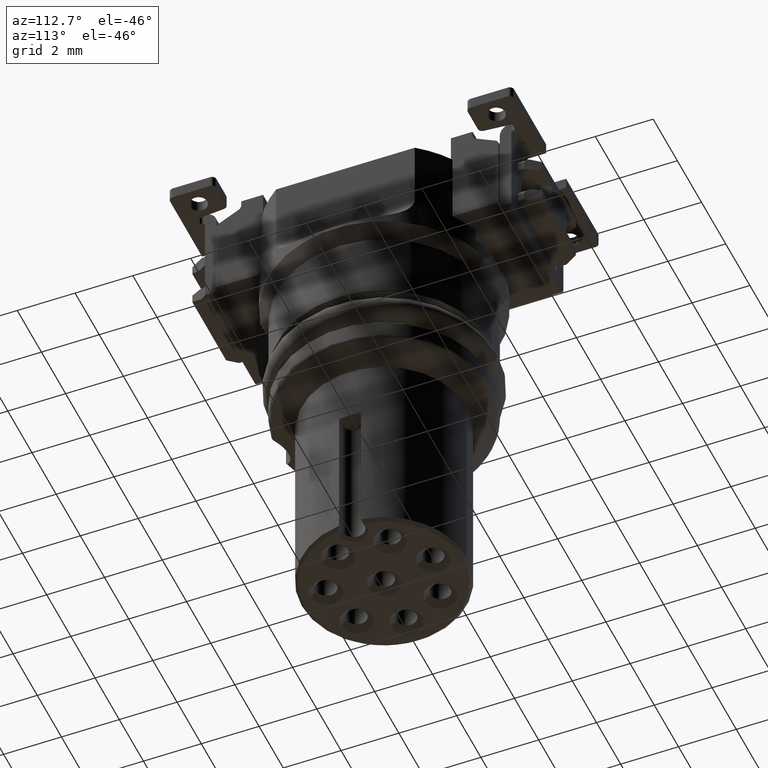
[diagram: clean part render]
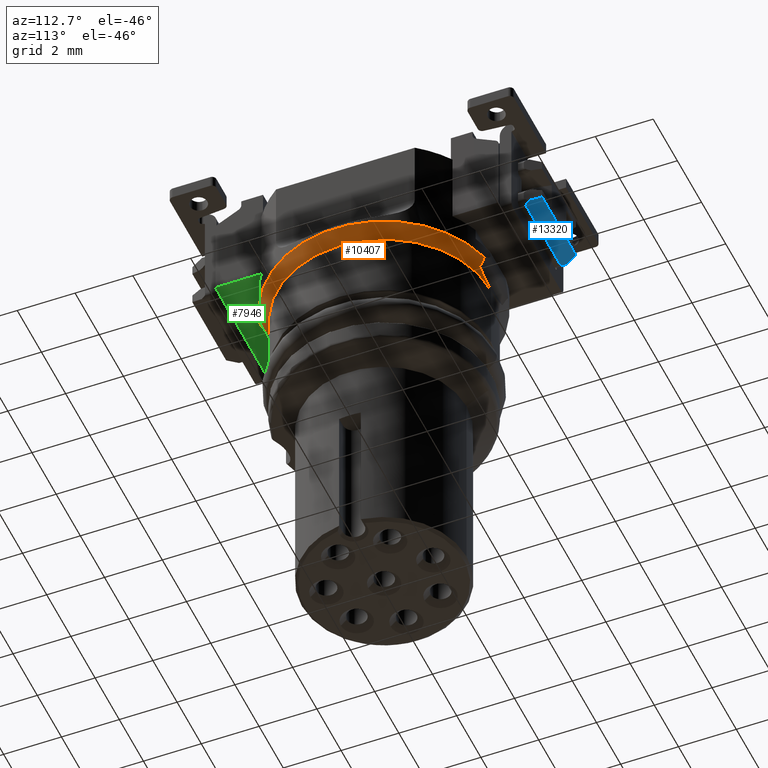
[diagram: same view with three faces highlighted in distinct colors, each labeled with its STEP entity id]
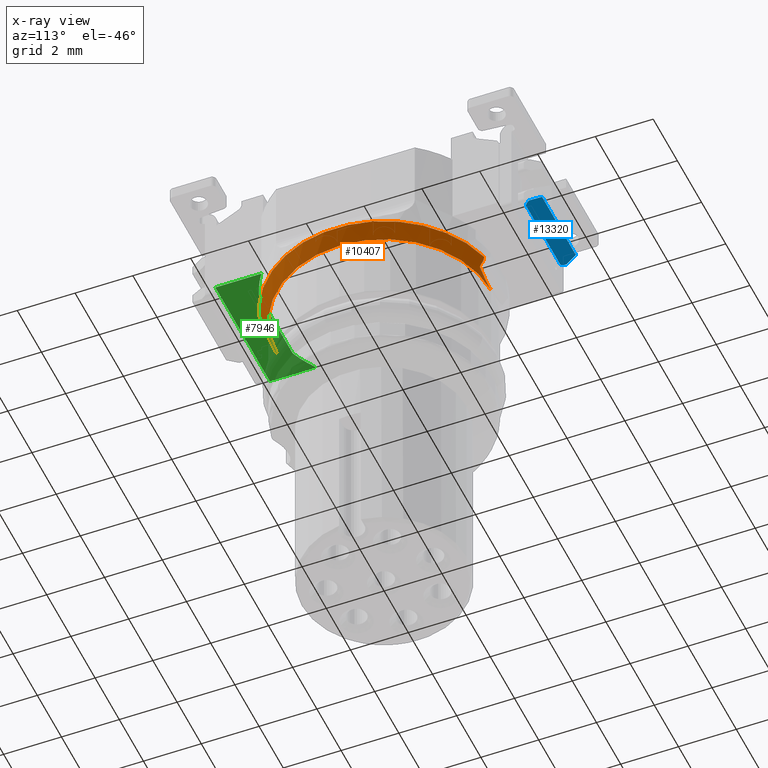
[diagram: x-ray of the same camera — body ghosted, the three highlighted faces saturated]
A machine part, auxiliary view with three faces highlighted in distinct colors.
The next image is the same camera in x-ray (body ghosted, the three faces saturated) — at least one of them is partly hidden behind the body in this view.
Their STEP definitions:

[orange] entity #10407 — the highlighted conical surface has half-angle 30 deg.
#134=CARTESIAN_POINT('',(9.943720652625E-1,3.874432112688E0,-4.5E0));
#147=CARTESIAN_POINT('',(0.E0,0.E0,-4.5E0));
#148=DIRECTION('',(0.E0,0.E0,1.E0));
#149=DIRECTION('',(2.485930163156E-1,-9.686080281719E-1,0.E0));
#150=AXIS2_PLACEMENT_3D('',#147,#148,#149);
#163=CARTESIAN_POINT('',(9.943720652625E-1,-3.874432112688E0,-4.5E0));
#2607=CARTESIAN_POINT('',(9.315641318417E-1,3.7E0,-4.819615242271E0));
#2608=CARTESIAN_POINT('',(8.493670666593E-1,3.7E0,-4.854375392762E0));
#2609=CARTESIAN_POINT('',(6.874080008922E-1,3.700000000001E0,
-4.914161153097E0));
#2610=CARTESIAN_POINT('',(4.538442470192E-1,3.699999999996E0,
-4.975620152893E0));
#2611=CARTESIAN_POINT('',(2.258823231950E-1,3.700000000014E0,
-5.011683513965E0));
#2612=CARTESIAN_POINT('',(7.496878670291E-2,3.699999999971E0,
-5.019615242373E0));
#2613=CARTESIAN_POINT('',(1.068376835849E-8,3.699999999971E0,
-5.019615242373E0));
#2615=CARTESIAN_POINT('',(-1.068378148800E-8,-3.699999999971E0,
-5.019615242373E0));
#2616=CARTESIAN_POINT('',(7.504329832605E-2,-3.699999999971E0,
-5.019615244249E0));
#2617=CARTESIAN_POINT('',(2.260781828589E-1,-3.700000000014E0,
-5.011668687322E0));
#2618=CARTESIAN_POINT('',(4.541779621527E-1,-3.699999999996E0,
-4.975552484746E0));
#2619=CARTESIAN_POINT('',(6.877179817763E-1,-3.700000000001E0,
-4.914057580533E0));
#2620=CARTESIAN_POINT('',(8.494914143789E-1,-3.7E0,-4.854322807607E0));
#2621=CARTESIAN_POINT('',(9.315641318417E-1,-3.7E0,-4.819615242271E0));
#2623=CARTESIAN_POINT('',(9.458364821559E-1,-3.816025403784E0,
-4.618653347947E0));
#2624=CARTESIAN_POINT('',(9.442525268213E-1,-3.803050933852E0,
-4.641125789072E0));
#2625=CARTESIAN_POINT('',(9.410833939143E-1,-3.777157165658E0,
-4.685975111183E0));
#2626=CARTESIAN_POINT('',(9.363259719431E-1,-3.738482027975E0,
-4.752962414639E0));
#2627=CARTESIAN_POINT('',(9.331518381993E-1,-3.712808951286E0,
-4.797429487852E0));
#2628=CARTESIAN_POINT('',(9.315641318417E-1,-3.7E0,-4.819615242271E0));
#2630=CARTESIAN_POINT('',(9.943720652625E-1,-3.874432112688E0,-4.5E0));
#2631=CARTESIAN_POINT('',(9.841727652113E-1,-3.868548814188E0,
-4.514261853440E0));
#2632=CARTESIAN_POINT('',(9.670263563274E-1,-3.856304178709E0,
-4.542098553465E0));
#2633=CARTESIAN_POINT('',(9.509026141288E-1,-3.836273175767E0,
-4.582503802808E0));
#2634=CARTESIAN_POINT('',(9.466628519931E-1,-3.822794351350E0,
-4.606929186851E0));
#2635=CARTESIAN_POINT('',(9.458364821559E-1,-3.816025403784E0,
-4.618653347947E0));
#2637=CARTESIAN_POINT('',(9.458364821559E-1,3.816025403784E0,
-4.618653347947E0));
#2638=CARTESIAN_POINT('',(9.466618478052E-1,3.822786125861E0,
-4.606943433814E0));
#2639=CARTESIAN_POINT('',(9.508935599502E-1,3.836255484421E0,
-4.582537309674E0));
#2640=CARTESIAN_POINT('',(9.670116381037E-1,3.856292283016E0,
-4.542124732746E0));
#2641=CARTESIAN_POINT('',(9.841651531226E-1,3.868544423280E0,
-4.514272497552E0));
#2642=CARTESIAN_POINT('',(9.943720652625E-1,3.874432112688E0,-4.5E0));
#2644=CARTESIAN_POINT('',(9.315641318417E-1,3.7E0,-4.819615242271E0));
#2645=CARTESIAN_POINT('',(9.331518382033E-1,3.712808951318E0,
-4.797429487796E0));
#2646=CARTESIAN_POINT('',(9.363259719524E-1,3.738482028051E0,
-4.752962414509E0));
#2647=CARTESIAN_POINT('',(9.410833939235E-1,3.777157165733E0,
-4.685975111053E0));
#2648=CARTESIAN_POINT('',(9.442525268252E-1,3.803050933884E0,
-4.641125789016E0));
#2649=CARTESIAN_POINT('',(9.458364821559E-1,3.816025403784E0,
-4.618653347947E0));
#2725=CARTESIAN_POINT('',(0.E0,0.E0,-5.019615242271E0));
#2726=DIRECTION('',(0.E0,0.E0,1.E0));
#2727=DIRECTION('',(0.E0,-1.E0,0.E0));
#2728=AXIS2_PLACEMENT_3D('',#2725,#2726,#2727);
#5933=CARTESIAN_POINT('',(-1.068378148800E-8,-3.699999999971E0,
-5.019615242373E0));
#5934=VERTEX_POINT('',#5933);
#5935=CARTESIAN_POINT('',(1.068376835849E-8,3.699999999971E0,
-5.019615242373E0));
#5936=VERTEX_POINT('',#5935);
#5937=VERTEX_POINT('',#134);
#5953=VERTEX_POINT('',#163);
#5975=VERTEX_POINT('',#2607);
#5976=VERTEX_POINT('',#2649);
#5977=VERTEX_POINT('',#2635);
#5978=VERTEX_POINT('',#2628);
#10387=CARTESIAN_POINT('',(0.E0,0.E0,-4.759807621263E0));
#10388=DIRECTION('',(0.E0,0.E0,1.E0));
#10389=DIRECTION('',(0.E0,-1.E0,0.E0));
#10390=AXIS2_PLACEMENT_3D('',#10387,#10388,#10389);
#10391=CONICAL_SURFACE('',#10390,3.849999999926E0,3.E1);
#10393=ORIENTED_EDGE('',*,*,#10392,.T.);
#10395=ORIENTED_EDGE('',*,*,#10394,.F.);
#10397=ORIENTED_EDGE('',*,*,#10396,.T.);
#10399=ORIENTED_EDGE('',*,*,#10398,.F.);
#10400=ORIENTED_EDGE('',*,*,#10376,.F.);
#10401=ORIENTED_EDGE('',*,*,#7174,.T.);
#10402=ORIENTED_EDGE('',*,*,#7225,.F.);
#10404=ORIENTED_EDGE('',*,*,#10403,.F.);
#10405=EDGE_LOOP('',(#10393,#10395,#10397,#10399,#10400,#10401,#10402,#10404));
#10406=FACE_OUTER_BOUND('',#10405,.F.);
#151=CIRCLE('',#150,4.E0);
#2614=B_SPLINE_CURVE_WITH_KNOTS('',3,(#2607,#2608,#2609,#2610,#2611,#2612,
#2613),.UNSPECIFIED.,.F.,.F.,(4,1,1,1,4),(0.E0,2.5E-1,5.E-1,7.5E-1,1.E0),
.UNSPECIFIED.);
#2622=B_SPLINE_CURVE_WITH_KNOTS('',3,(#2615,#2616,#2617,#2618,#2619,#2620,
#2621),.UNSPECIFIED.,.F.,.F.,(4,1,1,1,4),(0.E0,2.5E-1,5.E-1,7.5E-1,1.E0),
.UNSPECIFIED.);
#2629=B_SPLINE_CURVE_WITH_KNOTS('',3,(#2623,#2624,#2625,#2626,#2627,#2628),
.UNSPECIFIED.,.F.,.F.,(4,1,1,4),(0.E0,3.333333333333E-1,6.666666666667E-1,1.E0),
.UNSPECIFIED.);
#2636=B_SPLINE_CURVE_WITH_KNOTS('',3,(#2630,#2631,#2632,#2633,#2634,#2635),
.UNSPECIFIED.,.F.,.F.,(4,1,1,4),(0.E0,3.333333333333E-1,6.666666666667E-1,1.E0),
.UNSPECIFIED.);
#2643=B_SPLINE_CURVE_WITH_KNOTS('',3,(#2637,#2638,#2639,#2640,#2641,#2642),
.UNSPECIFIED.,.F.,.F.,(4,1,1,4),(0.E0,3.333333333333E-1,6.666666666667E-1,1.E0),
.UNSPECIFIED.);
#2650=B_SPLINE_CURVE_WITH_KNOTS('',3,(#2644,#2645,#2646,#2647,#2648,#2649),
.UNSPECIFIED.,.F.,.F.,(4,1,1,4),(0.E0,3.333333333333E-1,6.666666666667E-1,1.E0),
.UNSPECIFIED.);
#2729=CIRCLE('',#2728,3.7E0);
#7174=EDGE_CURVE('',#5953,#5937,#151,.T.);
#7225=EDGE_CURVE('',#5976,#5937,#2643,.T.);
#10376=EDGE_CURVE('',#5953,#5977,#2636,.T.);
#10392=EDGE_CURVE('',#5975,#5936,#2614,.T.);
#10394=EDGE_CURVE('',#5934,#5936,#2729,.T.);
#10396=EDGE_CURVE('',#5934,#5978,#2622,.T.);
#10398=EDGE_CURVE('',#5977,#5978,#2629,.T.);
#10403=EDGE_CURVE('',#5975,#5976,#2650,.T.);
#10407=ADVANCED_FACE('',(#10406),#10391,.T.);

[blue] entity #13320 — the highlighted planar face has unit normal (0, 0.342, -0.9397).
#4708=CARTESIAN_POINT('',(-1.4E0,5.500504516109E0,-3.2E0));
#4709=CARTESIAN_POINT('',(-1.421987980495E0,5.500504516109E0,-3.2E0));
#4710=CARTESIAN_POINT('',(-1.453592220628E0,5.516767493755E0,
-3.194080760216E0));
#4711=CARTESIAN_POINT('',(-1.501950523682E0,5.568814427804E0,
-3.175137225438E0));
#4712=CARTESIAN_POINT('',(-1.527190050242E0,5.622347825239E0,
-3.155652662232E0));
#4713=CARTESIAN_POINT('',(-1.541421356237E0,5.661448017109E0,
-3.141421356237E0));
#4715=CARTESIAN_POINT('',(1.541421356237E0,5.661448017109E0,-3.141421356237E0));
#4716=CARTESIAN_POINT('',(1.527190050242E0,5.622347825239E0,-3.155652662232E0));
#4717=CARTESIAN_POINT('',(1.501950523682E0,5.568814427804E0,-3.175137225438E0));
#4718=CARTESIAN_POINT('',(1.453592220628E0,5.516767493755E0,-3.194080760216E0));
#4719=CARTESIAN_POINT('',(1.421987980495E0,5.500504516109E0,-3.2E0));
#4720=CARTESIAN_POINT('',(1.4E0,5.500504516109E0,-3.2E0));
#4722=DIRECTION('',(3.236155771182E-1,8.891264907160E-1,3.236155771182E-1));
#4723=VECTOR('',#4722,4.370041686395E-1);
#4724=CARTESIAN_POINT('',(-1.541421356237E0,5.661448017109E0,
-3.141421356237E0));
#4725=LINE('',#4724,#4723);
#4734=DIRECTION('',(-1.E0,0.E0,0.E0));
#4735=VECTOR('',#4734,2.8E0);
#4736=CARTESIAN_POINT('',(1.4E0,5.500504516109E0,-3.2E0));
#4737=LINE('',#4736,#4735);
#4743=CARTESIAN_POINT('',(1.541421356237E0,5.661448017109E0,-3.141421356237E0));
#4758=DIRECTION('',(-3.236155771182E-1,8.891264907160E-1,3.236155771182E-1));
#4759=VECTOR('',#4758,4.370041686395E-1);
#4760=CARTESIAN_POINT('',(1.541421356237E0,5.661448017109E0,-3.141421356237E0));
#4761=LINE('',#4760,#4759);
#5149=DIRECTION('',(-1.E0,0.E0,0.E0));
#5150=VECTOR('',#5149,2.8E0);
#5151=CARTESIAN_POINT('',(1.4E0,6.05E0,-3.E0));
#5152=LINE('',#5151,#5150);
#5700=CARTESIAN_POINT('',(1.4E0,6.05E0,-3.E0));
#5702=VERTEX_POINT('',#5700);
#5703=CARTESIAN_POINT('',(-1.4E0,6.05E0,-3.E0));
#5704=VERTEX_POINT('',#5703);
#5739=CARTESIAN_POINT('',(-1.4E0,5.500504516109E0,-3.2E0));
#5741=VERTEX_POINT('',#5739);
#5743=VERTEX_POINT('',#4713);
#5768=VERTEX_POINT('',#4743);
#5769=VERTEX_POINT('',#4720);
#13304=CARTESIAN_POINT('',(0.E0,5.775252258055E0,-3.1E0));
#13305=DIRECTION('',(0.E0,3.420201433257E-1,-9.396926207859E-1));
#13306=DIRECTION('',(0.E0,-9.396926207859E-1,-3.420201433257E-1));
#13307=AXIS2_PLACEMENT_3D('',#13304,#13305,#13306);
#13308=PLANE('',#13307);
#13309=ORIENTED_EDGE('',*,*,#12451,.F.);
#13311=ORIENTED_EDGE('',*,*,#13310,.F.);
#13312=ORIENTED_EDGE('',*,*,#12557,.F.);
#13314=ORIENTED_EDGE('',*,*,#13313,.T.);
#13316=ORIENTED_EDGE('',*,*,#13315,.T.);
#13317=ORIENTED_EDGE('',*,*,#13294,.F.);
#13318=EDGE_LOOP('',(#13309,#13311,#13312,#13314,#13316,#13317));
#13319=FACE_OUTER_BOUND('',#13318,.F.);
#4714=B_SPLINE_CURVE_WITH_KNOTS('',3,(#4708,#4709,#4710,#4711,#4712,#4713),
.UNSPECIFIED.,.F.,.F.,(4,1,1,4),(0.E0,2.5E-1,5.E-1,1.E0),.UNSPECIFIED.);
#4721=B_SPLINE_CURVE_WITH_KNOTS('',3,(#4715,#4716,#4717,#4718,#4719,#4720),
.UNSPECIFIED.,.F.,.F.,(4,1,1,4),(0.E0,5.E-1,7.5E-1,1.E0),.UNSPECIFIED.);
#12451=EDGE_CURVE('',#5741,#5743,#4714,.T.);
#12557=EDGE_CURVE('',#5768,#5769,#4721,.T.);
#13294=EDGE_CURVE('',#5743,#5704,#4725,.T.);
#13310=EDGE_CURVE('',#5769,#5741,#4737,.T.);
#13313=EDGE_CURVE('',#5768,#5702,#4761,.T.);
#13315=EDGE_CURVE('',#5702,#5704,#5152,.T.);
#13320=ADVANCED_FACE('',(#13319),#13308,.T.);

[green] entity #7946 — the highlighted planar face has unit normal (0, 0, 1).
#178=CARTESIAN_POINT('',(0.E0,0.E0,-3.6E0));
#179=DIRECTION('',(0.E0,0.E0,1.E0));
#180=DIRECTION('',(3.479852726769E-1,-9.375E-1,0.E0));
#181=AXIS2_PLACEMENT_3D('',#178,#179,#180);
#557=CARTESIAN_POINT('',(0.E0,0.E0,-3.6E0));
#558=DIRECTION('',(0.E0,0.E0,1.E0));
#559=DIRECTION('',(-5.625E-1,-8.267972847077E-1,0.E0));
#560=AXIS2_PLACEMENT_3D('',#557,#558,#559);
#827=DIRECTION('',(1.E0,0.E0,0.E0));
#828=VECTOR('',#827,1.E-1);
#829=CARTESIAN_POINT('',(2.15E0,-4.9E0,-3.6E0));
#830=LINE('',#829,#828);
#831=DIRECTION('',(0.E0,1.E0,0.E0));
#832=VECTOR('',#831,1.592810861169E0);
#833=CARTESIAN_POINT('',(2.25E0,-4.9E0,-3.6E0));
#834=LINE('',#833,#832);
#835=DIRECTION('',(0.E0,-1.E0,0.E0));
#836=VECTOR('',#835,1.592810861169E0);
#837=CARTESIAN_POINT('',(-2.25E0,-3.307189138831E0,-3.6E0));
#838=LINE('',#837,#836);
#839=DIRECTION('',(1.E0,0.E0,0.E0));
#840=VECTOR('',#839,1.E-1);
#841=CARTESIAN_POINT('',(-2.25E0,-4.9E0,-3.6E0));
#842=LINE('',#841,#840);
#843=DIRECTION('',(1.E0,0.E0,0.E0));
#844=VECTOR('',#843,4.3E0);
#845=CARTESIAN_POINT('',(-2.15E0,-4.9E0,-3.6E0));
#846=LINE('',#845,#844);
#2591=DIRECTION('',(-1.E0,0.E0,0.E0));
#2592=VECTOR('',#2591,2.783882181415E0);
#2593=CARTESIAN_POINT('',(1.391941090708E0,-3.75E0,-3.6E0));
#2594=LINE('',#2593,#2592);
#5627=CARTESIAN_POINT('',(2.25E0,-3.307189138831E0,-3.6E0));
#5628=VERTEX_POINT('',#5627);
#5631=CARTESIAN_POINT('',(-2.25E0,-3.307189138831E0,-3.6E0));
#5632=VERTEX_POINT('',#5631);
#5635=CARTESIAN_POINT('',(-2.25E0,-4.9E0,-3.6E0));
#5636=VERTEX_POINT('',#5635);
#5637=CARTESIAN_POINT('',(2.25E0,-4.9E0,-3.6E0));
#5638=VERTEX_POINT('',#5637);
#5946=CARTESIAN_POINT('',(1.391941090708E0,-3.75E0,-3.6E0));
#5948=VERTEX_POINT('',#5946);
#5963=CARTESIAN_POINT('',(-1.391941090708E0,-3.75E0,-3.6E0));
#5965=VERTEX_POINT('',#5963);
#6820=CARTESIAN_POINT('',(-2.15E0,-4.9E0,-3.6E0));
#6821=CARTESIAN_POINT('',(2.15E0,-4.9E0,-3.6E0));
#6822=VERTEX_POINT('',#6820);
#6823=VERTEX_POINT('',#6821);
#7927=CARTESIAN_POINT('',(0.E0,0.E0,-3.6E0));
#7928=DIRECTION('',(0.E0,0.E0,1.E0));
#7929=DIRECTION('',(0.E0,-1.E0,0.E0));
#7930=AXIS2_PLACEMENT_3D('',#7927,#7928,#7929);
#7931=PLANE('',#7930);
#7933=ORIENTED_EDGE('',*,*,#7932,.T.);
#7934=ORIENTED_EDGE('',*,*,#7896,.T.);
#7935=ORIENTED_EDGE('',*,*,#7184,.F.);
#7937=ORIENTED_EDGE('',*,*,#7936,.T.);
#7938=ORIENTED_EDGE('',*,*,#7596,.F.);
#7939=ORIENTED_EDGE('',*,*,#7620,.T.);
#7941=ORIENTED_EDGE('',*,*,#7940,.T.);
#7943=ORIENTED_EDGE('',*,*,#7942,.T.);
#7944=EDGE_LOOP('',(#7933,#7934,#7935,#7937,#7938,#7939,#7941,#7943));
#7945=FACE_OUTER_BOUND('',#7944,.F.);
#182=CIRCLE('',#181,4.E0);
#561=CIRCLE('',#560,4.E0);
#7184=EDGE_CURVE('',#5948,#5628,#182,.T.);
#7596=EDGE_CURVE('',#5632,#5965,#561,.T.);
#7620=EDGE_CURVE('',#5632,#5636,#838,.T.);
#7896=EDGE_CURVE('',#5638,#5628,#834,.T.);
#7932=EDGE_CURVE('',#6823,#5638,#830,.T.);
#7936=EDGE_CURVE('',#5948,#5965,#2594,.T.);
#7940=EDGE_CURVE('',#5636,#6822,#842,.T.);
#7942=EDGE_CURVE('',#6822,#6823,#846,.T.);
#7946=ADVANCED_FACE('',(#7945),#7931,.F.);